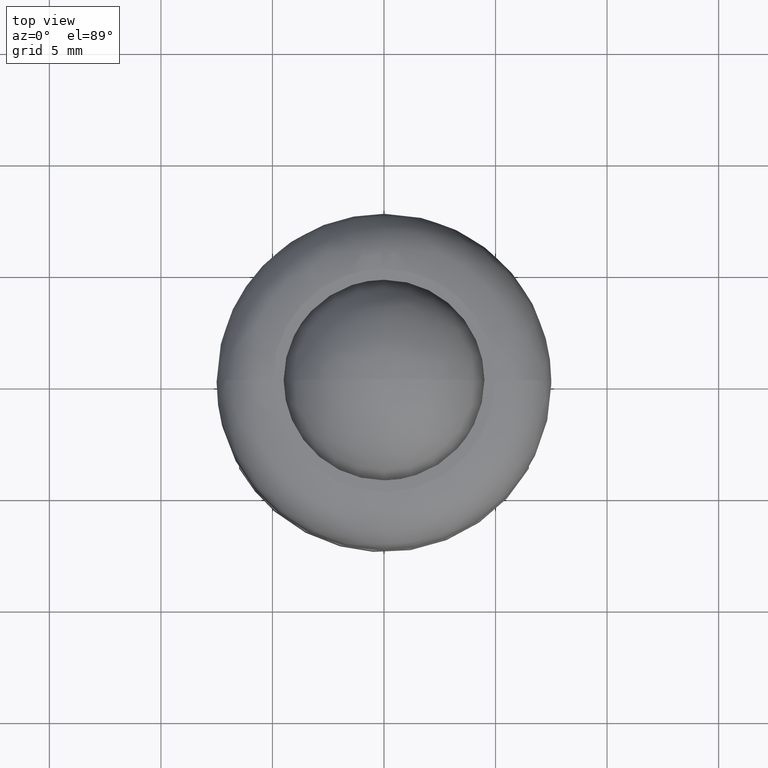
[diagram: clean part render]
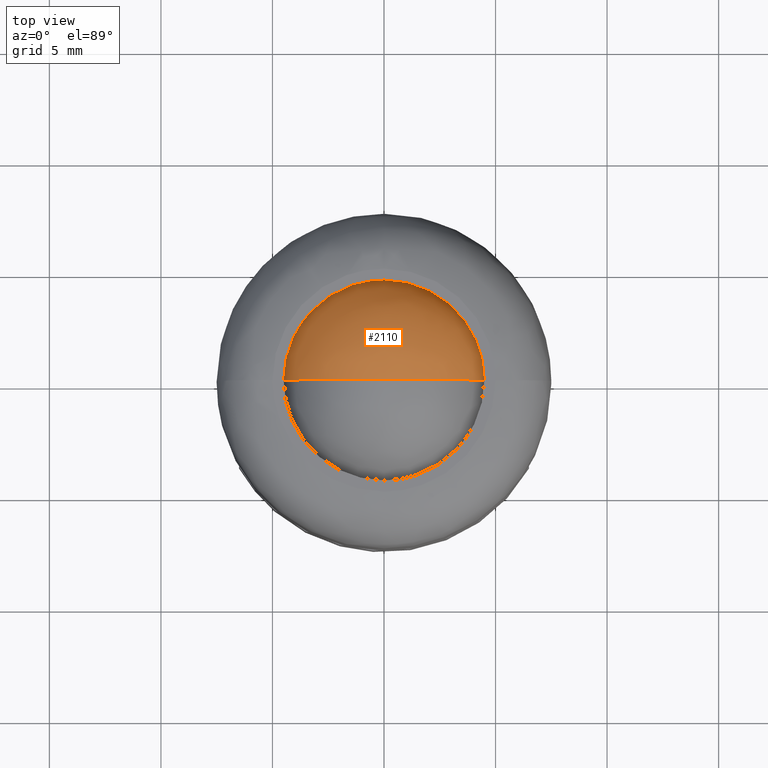
[diagram: same view with one face highlighted and labeled with its STEP entity id]
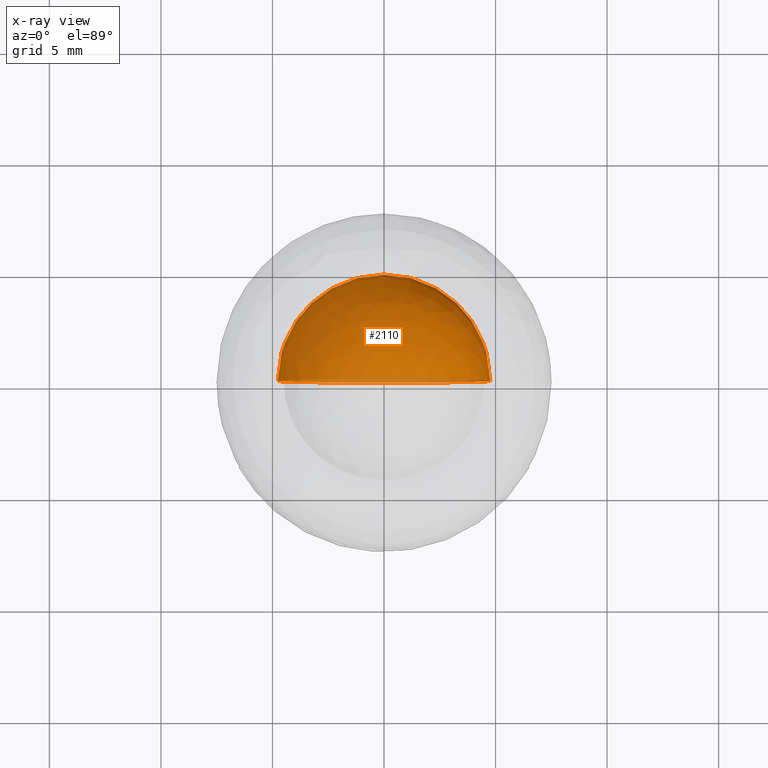
[diagram: x-ray of the same camera — body ghosted, the highlighted face saturated]
A machine part, top view. The second image highlights one B-rep face of the part: STEP entity #2110.
The next image is the same camera in x-ray: the body ghosted, the highlighted face saturated — about 3% of this face is hidden behind the body in this view.
In plain terms, the highlighted face is a freeform B-spline surface patch.
Its self-contained STEP definition (entity closure, byte-faithful):
#1990=CARTESIAN_POINT('',(-3.121845087131466,-1.785937500000000,9.859345087131466));
#1991=CARTESIAN_POINT('',(-2.827331399666234,-1.168160377358491,10.507275199554982));
#1992=CARTESIAN_POINT('',(-1.189274318907225,-0.226785714285715,11.494597275628903));
#1993=CARTESIAN_POINT('',(1.189274318907225,-0.226785714285715,11.494597275628903));
#1994=CARTESIAN_POINT('',(2.827331399666234,-1.168160377358491,10.507275199554982));
#1995=CARTESIAN_POINT('',(3.121845087131466,-1.785937500000000,9.859345087131466));
#1996=CARTESIAN_POINT('',(-3.769775199554978,-1.168160377358491,9.564831399666234));
#1997=CARTESIAN_POINT('',(-3.567822956721675,-0.226785714285715,10.305322956721676));
#1998=CARTESIAN_POINT('',(-1.611274883680757,1.382661290322580,11.571324651042270));
#1999=CARTESIAN_POINT('',(1.611274883680757,1.382661290322580,11.571324651042270));
#2000=CARTESIAN_POINT('',(3.567822956721675,-0.226785714285715,10.305322956721676));
#2001=CARTESIAN_POINT('',(3.769775199554978,-1.168160377358491,9.564831399666234));
#2002=CARTESIAN_POINT('',(-4.757097275628900,-0.226785714285715,7.926774318907228));
#2003=CARTESIAN_POINT('',(-4.833824651042270,1.382661290322580,8.348774883680756));
#2004=CARTESIAN_POINT('',(-2.497476069705173,4.762499999999998,9.234976069705173));
#2005=CARTESIAN_POINT('',(2.497476069705173,4.762499999999998,9.234976069705173));
#2006=CARTESIAN_POINT('',(4.833824651042270,1.382661290322580,8.348774883680756));
#2007=CARTESIAN_POINT('',(4.757097275628900,-0.226785714285715,7.926774318907228));
#2008=CARTESIAN_POINT('',(-4.757097275628900,-0.226785714285715,5.548225681092776));
#2009=CARTESIAN_POINT('',(-4.833824651042270,1.382661290322580,5.126225116319244));
#2010=CARTESIAN_POINT('',(-2.497476069705173,4.762499999999998,4.240023930294828));
#2011=CARTESIAN_POINT('',(2.497476069705173,4.762499999999998,4.240023930294828));
#2012=CARTESIAN_POINT('',(4.833824651042270,1.382661290322580,5.126225116319244));
#2013=CARTESIAN_POINT('',(4.757097275628900,-0.226785714285715,5.548225681092776));
#2014=CARTESIAN_POINT('',(-3.769775199554978,-1.168160377358491,3.910168600333770));
#2015=CARTESIAN_POINT('',(-3.567822956721675,-0.226785714285715,3.169677043278325));
#2016=CARTESIAN_POINT('',(-1.611274883680757,1.382661290322580,1.903675348957731));
#2017=CARTESIAN_POINT('',(1.611274883680757,1.382661290322580,1.903675348957731));
#2018=CARTESIAN_POINT('',(3.567822956721675,-0.226785714285715,3.169677043278325));
#2019=CARTESIAN_POINT('',(3.769775199554978,-1.168160377358491,3.910168600333770));
#2020=CARTESIAN_POINT('',(-3.121845087131466,-1.785937500000000,3.615654912868534));
#2021=CARTESIAN_POINT('',(-2.827331399666234,-1.168160377358491,2.967724800445025));
#2022=CARTESIAN_POINT('',(-1.189274318907225,-0.226785714285715,1.980402724371100));
#2023=CARTESIAN_POINT('',(1.189274318907225,-0.226785714285715,1.980402724371100));
#2024=CARTESIAN_POINT('',(2.827331399666234,-1.168160377358491,2.967724800445025));
#2025=CARTESIAN_POINT('',(3.121845087131466,-1.785937500000000,3.615654912868534));
#2033=(BOUNDED_SURFACE()B_SPLINE_SURFACE(2,2,((#1990,#1996,#2002,#2008,#2014,#2020),(#1991,#1997,#2003,#2009,#2015,#2021),(#1992,#1998,#2004,#2010,#2016,#2022),(#1993,#1999,#2005,#2011,#2017,#2023),(#1994,#2000,#2006,#2012,#2018,#2024),(#1995,#2001,#2007,#2013,#2019,#2025)),.UNSPECIFIED.,.F.,.F.,.U.)B_SPLINE_SURFACE_WITH_KNOTS((3,1,1,1,3),(3,1,1,1,3),(0.0,4.391166715965140,8.782333431930280,13.173500147895419,17.564666863860559),(0.0,4.391166715965142,8.782333431930285,13.173500147895430,17.564666863860570),.UNSPECIFIED.)GEOMETRIC_REPRESENTATION_ITEM()RATIONAL_B_SPLINE_SURFACE(((3.200000000000000,2.650000000000000,2.100000000000000,2.100000000000000,2.650000000000000,3.200000000000000),(2.650000000000000,2.100000000000000,1.550000000000000,1.550000000000000,2.100000000000000,2.650000000000000),(2.100000000000000,1.550000000000000,1.0,1.0,1.550000000000000,2.100000000000000),(2.100000000000000,1.550000000000000,1.0,1.0,1.550000000000000,2.100000000000000),(2.650000000000000,2.100000000000000,1.550000000000000,1.550000000000000,2.100000000000000,2.650000000000000),(3.200000000000000,2.650000000000000,2.100000000000000,2.100000000000000,2.650000000000000,3.200000000000000)))REPRESENTATION_ITEM('')SURFACE());
#2034=CARTESIAN_POINT('',(4.762499999999982,0.0,6.737499585445666));
#2035=VERTEX_POINT('',#2034);
#2036=CARTESIAN_POINT('',(0.0,0.0,1.975000000000000));
#2037=VERTEX_POINT('',#2036);
#2038=CARTESIAN_POINT('',(4.762499999999982,0.0,6.737499585445666));
#2039=CARTESIAN_POINT('',(4.762514732332685,0.0,6.493981969425077));
#2040=CARTESIAN_POINT('',(4.725814310999592,0.0,6.016687996244976));
#2041=CARTESIAN_POINT('',(4.574124597411461,0.0,5.360043846073175));
#2042=CARTESIAN_POINT('',(4.349456858527381,0.0,4.766813615024045));
#2043=CARTESIAN_POINT('',(4.052094133969249,0.0,4.206341764249821));
#2044=CARTESIAN_POINT('',(3.703072825973951,0.0,3.723479116841512));
#2045=CARTESIAN_POINT('',(3.298180514088192,0.0,3.287624090510573));
#2046=CARTESIAN_POINT('',(2.898009852003741,0.0,2.944568869238067));
#2047=CARTESIAN_POINT('',(2.412395517687481,0.0,2.617933880416886));
#2048=CARTESIAN_POINT('',(1.829940402747807,0.0,2.320233805034202));
#2049=CARTESIAN_POINT('',(1.013009215858139,0.0,2.050344632642077));
#2050=CARTESIAN_POINT('',(0.370155750416168,0.0,1.974917072236426));
#2051=CARTESIAN_POINT('',(0.0,0.0,1.975000000000000));
#2052=B_SPLINE_CURVE_WITH_KNOTS('',3,(#2038,#2039,#2040,#2041,#2042,#2043,#2044,#2045,#2046,#2047,#2048,#2049,#2050,#2051),.UNSPECIFIED.,.F.,.U.,(4,1,1,1,1,1,1,1,1,1,1,4),(0.000000019654474,0.730551790342653,1.431894938645042,2.016345177654079,2.630018328089525,3.331359486902169,3.798901866662922,4.412570732506522,4.909355597674183,5.552251747885189,6.370481118446810,7.480929008099495),.UNSPECIFIED.);
#2053=EDGE_CURVE('',#2035,#2037,#2052,.T.);
#2054=ORIENTED_EDGE('',*,*,#2053,.T.);
#2055=CARTESIAN_POINT('',(-4.762499999999982,0.0,6.737499585445666));
#2056=VERTEX_POINT('',#2055);
#2057=CARTESIAN_POINT('',(-4.762499999999982,0.0,6.737499585445666));
#2058=CARTESIAN_POINT('',(-4.762514732332685,0.0,6.493981969425077));
#2059=CARTESIAN_POINT('',(-4.725814310999592,0.0,6.016687996244976));
#2060=CARTESIAN_POINT('',(-4.574124597411461,0.0,5.360043846073175));
#2061=CARTESIAN_POINT('',(-4.349456858527381,0.0,4.766813615024045));
#2062=CARTESIAN_POINT('',(-4.052094133969249,0.0,4.206341764249821));
#2063=CARTESIAN_POINT('',(-3.703072825973951,0.0,3.723479116841512));
#2064=CARTESIAN_POINT('',(-3.298180514088192,0.0,3.287624090510573));
#2065=CARTESIAN_POINT('',(-2.898009852003741,0.0,2.944568869238067));
#2066=CARTESIAN_POINT('',(-2.412395517687481,0.0,2.617933880416886));
#2067=CARTESIAN_POINT('',(-1.829940402747807,0.0,2.320233805034202));
#2068=CARTESIAN_POINT('',(-1.013009215858139,0.0,2.050344632642077));
#2069=CARTESIAN_POINT('',(-0.370155750416168,0.0,1.974917072236426));
#2070=CARTESIAN_POINT('',(0.0,0.0,1.975000000000000));
#2071=B_SPLINE_CURVE_WITH_KNOTS('',3,(#2057,#2058,#2059,#2060,#2061,#2062,#2063,#2064,#2065,#2066,#2067,#2068,#2069,#2070),.UNSPECIFIED.,.F.,.U.,(4,1,1,1,1,1,1,1,1,1,1,4),(0.000000019654474,0.730551790342653,1.431894938645042,2.016345177654079,2.630018328089525,3.331359486902169,3.798901866662922,4.412570732506522,4.909355597674183,5.552251747885189,6.370481118446810,7.480929008099495),.UNSPECIFIED.);
#2072=EDGE_CURVE('',#2056,#2037,#2071,.T.);
#2073=ORIENTED_EDGE('',*,*,#2072,.F.);
#2074=CARTESIAN_POINT('',(0.0,0.0,11.500000000000000));
#2075=VERTEX_POINT('',#2074);
#2076=CARTESIAN_POINT('',(0.0,0.0,11.500000000000000));
#2077=CARTESIAN_POINT('',(-0.340931149461797,0.0,11.500055971802750));
#2078=CARTESIAN_POINT('',(-0.915612100753172,0.0,11.438015420876470));
#2079=CARTESIAN_POINT('',(-1.645990165019853,0.0,11.221323934526101));
#2080=CARTESIAN_POINT('',(-2.260651995120762,0.0,10.946605036447981));
#2081=CARTESIAN_POINT('',(-2.791064391443057,0.0,10.615276539943720));
#2082=CARTESIAN_POINT('',(-3.337484662332443,0.0,10.158353219283370));
#2083=CARTESIAN_POINT('',(-3.846152066028528,0.0,9.590203875961683));
#2084=CARTESIAN_POINT('',(-4.259843387155067,0.0,8.914159520313602));
#2085=CARTESIAN_POINT('',(-4.561668172774212,0.0,8.172656290503381));
#2086=CARTESIAN_POINT('',(-4.726709104256833,0.0,7.468055751685463));
#2087=CARTESIAN_POINT('',(-4.762507216062855,0.0,6.961534513264486));
#2088=CARTESIAN_POINT('',(-4.762499999999982,0.0,6.737499585445666));
#2089=B_SPLINE_CURVE_WITH_KNOTS('',3,(#2076,#2077,#2078,#2079,#2080,#2081,#2082,#2083,#2084,#2085,#2086,#2087,#2088),.UNSPECIFIED.,.F.,.U.,(4,1,1,1,1,1,1,1,1,1,4),(0.000000019616457,1.022781354435088,1.724120218051358,2.279347462089524,3.039131588883236,3.594354046877478,4.412571008192345,5.318471570709793,5.961366957483507,6.808823214131451,7.480929475399615),.UNSPECIFIED.);
#2090=EDGE_CURVE('',#2075,#2056,#2089,.T.);
#2091=ORIENTED_EDGE('',*,*,#2090,.F.);
#2092=CARTESIAN_POINT('',(0.0,0.0,11.500000000000000));
#2093=CARTESIAN_POINT('',(0.340931149461797,0.0,11.500055971802750));
#2094=CARTESIAN_POINT('',(0.915612100753172,0.0,11.438015420876470));
#2095=CARTESIAN_POINT('',(1.645990165019853,0.0,11.221323934526101));
#2096=CARTESIAN_POINT('',(2.260651995120762,0.0,10.946605036447981));
#2097=CARTESIAN_POINT('',(2.791064391443057,0.0,10.615276539943720));
#2098=CARTESIAN_POINT('',(3.337484662332443,0.0,10.158353219283370));
#2099=CARTESIAN_POINT('',(3.846152066028528,0.0,9.590203875961683));
#2100=CARTESIAN_POINT('',(4.259843387155067,0.0,8.914159520313602));
#2101=CARTESIAN_POINT('',(4.561668172774212,0.0,8.172656290503381));
#2102=CARTESIAN_POINT('',(4.726709104256833,0.0,7.468055751685463));
#2103=CARTESIAN_POINT('',(4.762507216062855,0.0,6.961534513264486));
#2104=CARTESIAN_POINT('',(4.762499999999982,0.0,6.737499585445666));
#2105=B_SPLINE_CURVE_WITH_KNOTS('',3,(#2092,#2093,#2094,#2095,#2096,#2097,#2098,#2099,#2100,#2101,#2102,#2103,#2104),.UNSPECIFIED.,.F.,.U.,(4,1,1,1,1,1,1,1,1,1,4),(0.000000019616457,1.022781354435088,1.724120218051358,2.279347462089524,3.039131588883236,3.594354046877478,4.412571008192345,5.318471570709793,5.961366957483507,6.808823214131451,7.480929475399615),.UNSPECIFIED.);
#2106=EDGE_CURVE('',#2075,#2035,#2105,.T.);
#2107=ORIENTED_EDGE('',*,*,#2106,.T.);
#2108=EDGE_LOOP('',(#2054,#2073,#2091,#2107));
#2109=FACE_OUTER_BOUND('',#2108,.T.);
#2110=ADVANCED_FACE('',(#2109),#2033,.T.);